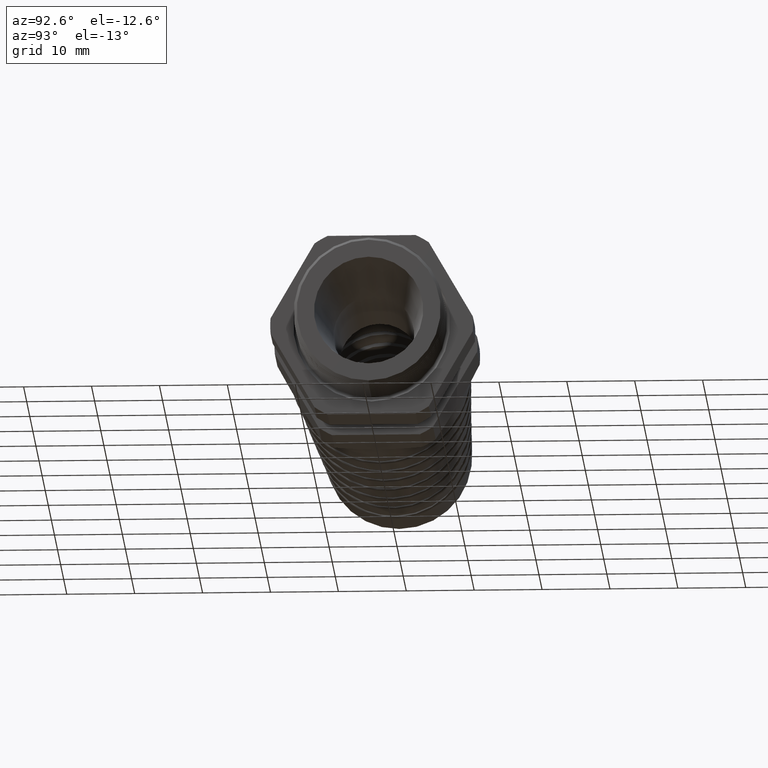
[diagram: clean part render]
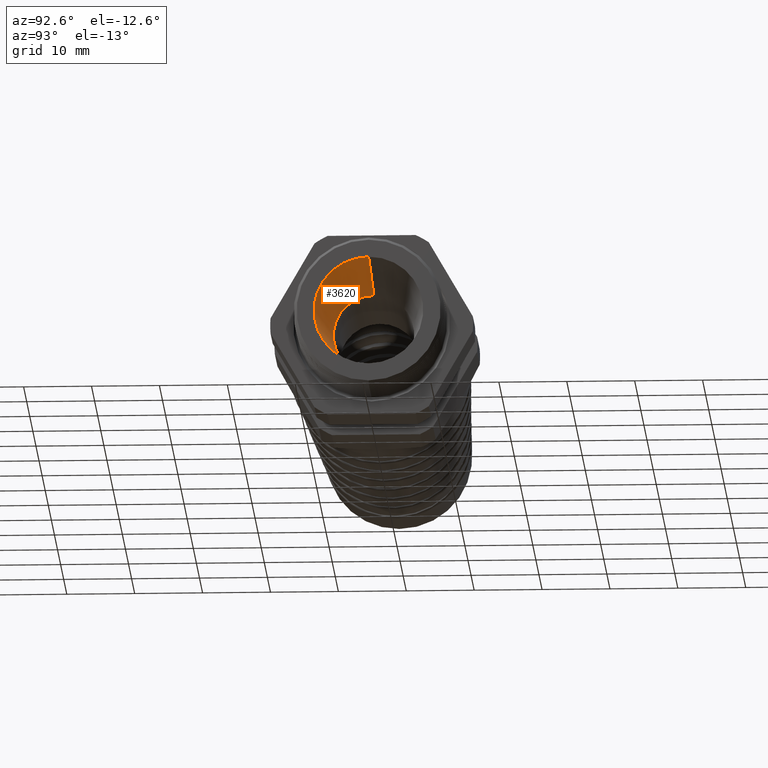
[diagram: same view with one face highlighted and labeled with its STEP entity id]
A machine part, auxiliary view. The second image highlights one B-rep face of the part: STEP entity #3620.
In plain terms, the highlighted conical surface has half-angle 7 deg.
Its self-contained STEP definition (entity closure, byte-faithful):
#3620 = ADVANCED_FACE ( 'NONE', ( #9785 ), #9782, .F. ) ;
#3621 = EDGE_LOOP ( 'NONE', ( #3712, #3713, #3716, #3719 ) ) ;
#3686 = VERTEX_POINT ( 'NONE', #9952 ) ;
#3688 = EDGE_CURVE ( 'NONE', #3686, #3689, #9951, .T. ) ;
#3689 = VERTEX_POINT ( 'NONE', #9946 ) ;
#3712 = ORIENTED_EDGE ( 'NONE', *, *, #3688, .F. ) ;
#3713 = ORIENTED_EDGE ( 'NONE', *, *, #3714, .T. ) ;
#3714 = EDGE_CURVE ( 'NONE', #3686, #3715, #10030, .T. ) ;
#3715 = VERTEX_POINT ( 'NONE', #10026 ) ;
#3716 = ORIENTED_EDGE ( 'NONE', *, *, #3717, .T. ) ;
#3717 = EDGE_CURVE ( 'NONE', #3715, #3718, #10025, .T. ) ;
#3718 = VERTEX_POINT ( 'NONE', #10020 ) ;
#3719 = ORIENTED_EDGE ( 'NONE', *, *, #3775, .F. ) ;
#3775 = EDGE_CURVE ( 'NONE', #3689, #3718, #10417, .T. ) ;
#9778 = DIRECTION ( 'NONE',  ( 0.0000000000000000000, 0.0000000000000000000, -1.000000000000000000 ) ) ;
#9779 = DIRECTION ( 'NONE',  ( 1.000000000000000000, 0.0000000000000000000, 0.0000000000000000000 ) ) ;
#9780 = CARTESIAN_POINT ( 'NONE',  ( -0.5855905511811021500, 0.0000000000000000000, 0.0000000000000000000 ) ) ;
#9781 = AXIS2_PLACEMENT_3D ( 'NONE', #9780, #9779, #9778 ) ;
#9782 = CONICAL_SURFACE ( 'NONE', #9781, 0.2349999999999999600, 0.1221730476395965200 ) ;
#9785 = FACE_OUTER_BOUND ( 'NONE', #3621, .T. ) ;
#9946 = CARTESIAN_POINT ( 'NONE',  ( -0.5855905511811021500, 0.0000000000000000000, -0.2349999999999999600 ) ) ;
#9947 = DIRECTION ( 'NONE',  ( 0.0000000000000000000, 0.0000000000000000000, -1.000000000000000000 ) ) ;
#9948 = DIRECTION ( 'NONE',  ( 1.000000000000000000, 0.0000000000000000000, 0.0000000000000000000 ) ) ;
#9949 = CARTESIAN_POINT ( 'NONE',  ( -0.5855905511811021500, 0.0000000000000000000, 0.0000000000000000000 ) ) ;
#9950 = AXIS2_PLACEMENT_3D ( 'NONE', #9949, #9948, #9947 ) ;
#9951 = CIRCLE ( 'NONE', #9950, 0.2349999999999999600 ) ;
#9952 = CARTESIAN_POINT ( 'NONE',  ( -0.5855905511811021500, 3.378336644487051800E-017, 0.2349999999999999600 ) ) ;
#10020 = CARTESIAN_POINT ( 'NONE',  ( 0.08000000000000009900, 0.0000000000000000000, -0.3167242435678894200 ) ) ;
#10021 = DIRECTION ( 'NONE',  ( 0.0000000000000000000, 0.0000000000000000000, -1.000000000000000000 ) ) ;
#10022 = DIRECTION ( 'NONE',  ( 1.000000000000000000, 0.0000000000000000000, 0.0000000000000000000 ) ) ;
#10023 = CARTESIAN_POINT ( 'NONE',  ( 0.08000000000000009900, 0.0000000000000000000, 0.0000000000000000000 ) ) ;
#10024 = AXIS2_PLACEMENT_3D ( 'NONE', #10023, #10022, #10021 ) ;
#10025 = CIRCLE ( 'NONE', #10024, 0.3167242435678894200 ) ;
#10026 = CARTESIAN_POINT ( 'NONE',  ( 0.08000000000000009900, 3.878753310977824300E-017, 0.3167242435678894200 ) ) ;
#10027 = DIRECTION ( 'NONE',  ( 0.9925461516413227600, 1.492469013152954700E-017, 0.1218693434051409500 ) ) ;
#10028 = VECTOR ( 'NONE', #10027, 39.37007874015748900 ) ;
#10029 = CARTESIAN_POINT ( 'NONE',  ( -0.5855905511811021500, 2.877919977996279200E-017, 0.2349999999999999600 ) ) ;
#10030 = LINE ( 'NONE', #10029, #10028 ) ;
#10414 = DIRECTION ( 'NONE',  ( 0.9925461516413227600, 0.0000000000000000000, -0.1218693434051409500 ) ) ;
#10415 = VECTOR ( 'NONE', #10414, 39.37007874015748900 ) ;
#10416 = CARTESIAN_POINT ( 'NONE',  ( -0.5855905511811021500, 0.0000000000000000000, -0.2349999999999999600 ) ) ;
#10417 = LINE ( 'NONE', #10416, #10415 ) ;